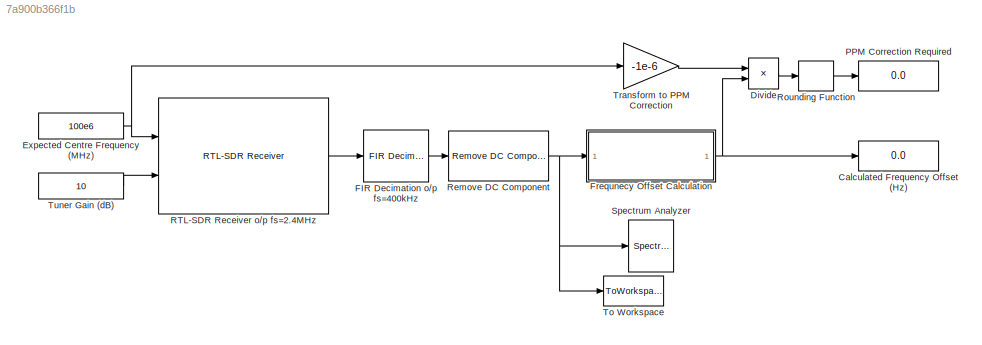
MODEL slx_7a900b366f1b
KIND model
CONFIG AbsTol = auto
CONFIG EnableMultiTasking = off
CONFIG FixedStep = auto
CONFIG MaxStep = auto
CONFIG MinStep = auto
CONFIG RelTol = 1e-3
CONFIG SampleTimeConstraint = Unconstrained
CONFIG Solver = VariableStepAuto
CONFIG SolverName = VariableStepAuto
CONFIG StartTime = 0.0
CONFIG StopTime = 5
BLOCK [Display]  Calculated Frequency Offset (Hz)
  Decimation = 1
  Format = bank
  Ports = [1]
BLOCK [Product] Divide
  InputSameDT = off
  Inputs = /*
  OutDataTypeStr = Inherit: Inherit via internal rule
  Ports = [2, 1]
  RndMeth = Floor
  SaturateOnIntegerOverflow = off
BLOCK [Constant] Expected Centre Frequency (MHz)
  Value = 100e6
BLOCK [Reference] FIR Decimation o//p fs=400kHz  REF=dspmlti4/FIR
Decimation
  Ports = [1, 1]
  SourceBlock = dspmlti4/FIR\nDecimation
  SourceProductBaseCode = DS
  SourceProductName = DSP System Toolbox
  SourceType = FIR Decimation
  UserDataPersistent = on
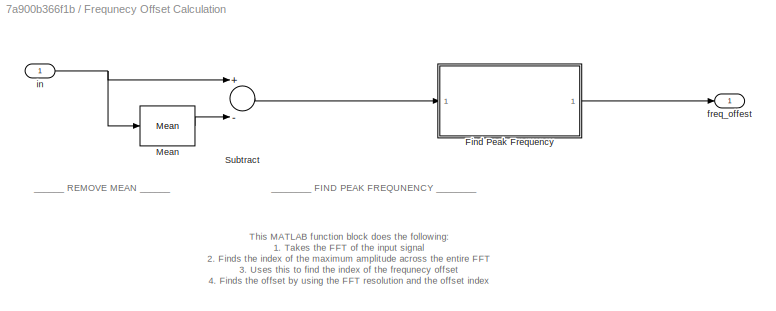
BLOCK [SubSystem] Frequnecy Offset Calculation
  Ports = [1, 1]
  RequestExecContextInheritance = off
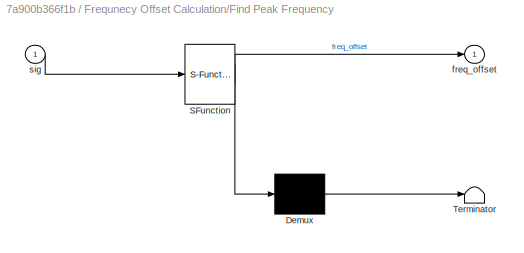
BLOCK [SubSystem] Frequnecy Offset Calculation/Find Peak Frequency
  ErrorFcn = Stateflow.Translate.translate
  PermitHierarchicalResolution = ExplicitOnly
  Ports = [1, 1]
  RequestExecContextInheritance = off
  SFBlockType = MATLAB Function
  TreatAsAtomicUnit = on
BLOCK [Demux] Frequnecy Offset Calculation/Find Peak Frequency/ Demux 
  Outputs = 1
  Ports = [1, 1]
BLOCK [S-Function] Frequnecy Offset Calculation/Find Peak Frequency/ SFunction 
  EnableBusSupport = on
  FunctionName = sf_sfun
  PortCounts = [1 2]
  Ports = [1, 2]
  SFcnIsStateOwnerBlock = off
  SFunctionDeploymentMode = off
  Tag = Stateflow S-Function TX_RX_ppm_test 1
BLOCK [Terminator] Frequnecy Offset Calculation/Find Peak Frequency/ Terminator 
BLOCK [Outport] Frequnecy Offset Calculation/Find Peak Frequency/freq_offset
  IconDisplay = Port number
BLOCK [Inport] Frequnecy Offset Calculation/Find Peak Frequency/sig
  IconDisplay = Port number
BLOCK [Reference] Frequnecy Offset Calculation/Mean  REF=dspstat3/Mean
  Ports = [1, 1]
  SourceBlock = dspstat3/Mean
  SourceProductBaseCode = DS
  SourceProductName = DSP System Toolbox
  SourceType = Mean
  UserDataPersistent = on
BLOCK [Sum] Frequnecy Offset Calculation/Subtract
  InputSameDT = off
  Inputs = +-
  OutDataTypeStr = Inherit: Inherit via internal rule
  Ports = [2, 1]
  SaturateOnIntegerOverflow = off
BLOCK [Outport] Frequnecy Offset Calculation/freq_offest
  IconDisplay = Port number
BLOCK [Inport] Frequnecy Offset Calculation/in
  IconDisplay = Port number
BLOCK [Display] PPM Correction Required
  Decimation = 1
  Ports = [1]
BLOCK [Reference] RTL-SDR Receiver o//p fs=2.4MHz  REF=sdrrlib/RTL-SDR
Receiver
  Ports = [2, 1]
  SourceBlock = sdrrlib/RTL-SDR\nReceiver
  SourceProductBaseCode = RTLSDR
  SourceProductName = Communications System Toolbox Support Package for RTL-SDR Radio
  SourceType = RTL-SDR Receiver
BLOCK [Reference] Remove DC Component  REF=rtlsdr_book_library/Additional Tools/Remove DC  (lib defined in slx_12414fe83126, slx_a1558d2e1022)
Component
  Ports = [1, 1]
  SourceBlock = rtlsdr_book_library/Additional Tools/Remove DC\nComponent
  SourceProductName = RTL-SDR Book Library
BLOCK [Rounding] Rounding Function
  Operator = round
BLOCK [SpectrumAnalyzer] Spectrum Analyzer
  Ports = [1]
  ScopeSpecificationString = spbscopes.SpectrumAnalyzerBlockCfg('CurrentConfiguration', extmgr.ConfigurationSet(extmgr.Configuration('Core','General UI',true,'ShowStatusbar',false,'FigureColor',[0.941176470588235 0.941176470588235 0.941176470588235]),extmgr.Configuration('Core','Source UI',true),extmgr.Configuration('Sources','WiredSimulink',true),extmgr.Configuration('Visuals','Spectrum',true,'AxesProperties',struct('Color',...<+1751ch>
  StartFcn = startfcn_spectrum_analyzer;
BLOCK [ToWorkspace] To Workspace
  FixptAsFi = on
  MaxDataPoints = inf
  Ports = [1]
  SampleTime = -1
  Save2DSignal = 3-D array (concatenate along third dimension)
  SaveFormat = Timeseries
  VariableName = simout
BLOCK [Gain] Transform to PPM Correction
  Gain = -1e-6
  OutDataTypeStr = Inherit: Inherit via internal rule
  ParamDataTypeStr = Inherit: Inherit via internal rule
  SaturateOnIntegerOverflow = off
BLOCK [Constant] Tuner Gain (dB)
  Value = 10
ANNOTATION Frequnecy Offset Calculation: ________ FIND PEAK FREQUNENCY ________
ANNOTATION Frequnecy Offset Calculation: This MATLAB function block does the following: 1. Takes the FFT of the input signal 2. Finds the index of the maximum amplitude across the entire FFT 3. Uses this to find the index of the frequnecy offset 4. Finds the offset by using the FFT resolution and the offset index
ANNOTATION Frequnecy Offset Calculation: ______ REMOVE MEAN ______
LINE Divide:1 -> Rounding Function:1
NET Expected Centre Frequency (MHz):1 -> RTL-SDR Receiver o//p fs=2.4MHz:1, Transform to PPM Correction:1
LINE FIR Decimation o//p fs=400kHz:1 -> Remove DC Component:1
LINE Frequnecy Offset Calculation/Find Peak Frequency:1 -> Frequnecy Offset Calculation/freq_offest:1
LINE Frequnecy Offset Calculation/Mean:1 -> Frequnecy Offset Calculation/Subtract:2
LINE Frequnecy Offset Calculation/Subtract:1 -> Frequnecy Offset Calculation/Find Peak Frequency:1
NET Frequnecy Offset Calculation/in:1 -> Frequnecy Offset Calculation/Mean:1, Frequnecy Offset Calculation/Subtract:1
NET Frequnecy Offset Calculation:1 ->  Calculated Frequency Offset (Hz):1, Divide:2
LINE RTL-SDR Receiver o//p fs=2.4MHz:1 -> FIR Decimation o//p fs=400kHz:1
NET Remove DC Component:1 -> Frequnecy Offset Calculation:1, Spectrum Analyzer:1, To Workspace:1
LINE Rounding Function:1 -> PPM Correction Required:1
LINE Transform to PPM Correction:1 -> Divide:1
LINE Tuner Gain (dB):1 -> RTL-SDR Receiver o//p fs=2.4MHz:2
note: NET lines group one-source signal fan-out (src -> all destinations, sorted); 1:1 wires keep LINE
CHART Frequnecy Offset
Calculation/Find Peak Frequency states=1 transitions=1
  STATE_LABEL 'eML_blk_kernel()'
  STATE_LABEL 'SCRIPT:\nfunction freq_offset  = fcn(sig)\n\nnfft = 8192;                        % length of FFT\nfs = 400e3;                         % sampling frequency\ndelta_f = fs/nfft;                  % frequency resolution of FFT // width of fft bin\n\nfft_sig = fft(sig,nfft);            % find fft of signal [ +ve freqs , -ve freqs ]\nfft_sig = fftshift(fft_sig);        % rearrange to be [ -ve freqs , +ve freqs ]...<+225ch>'
